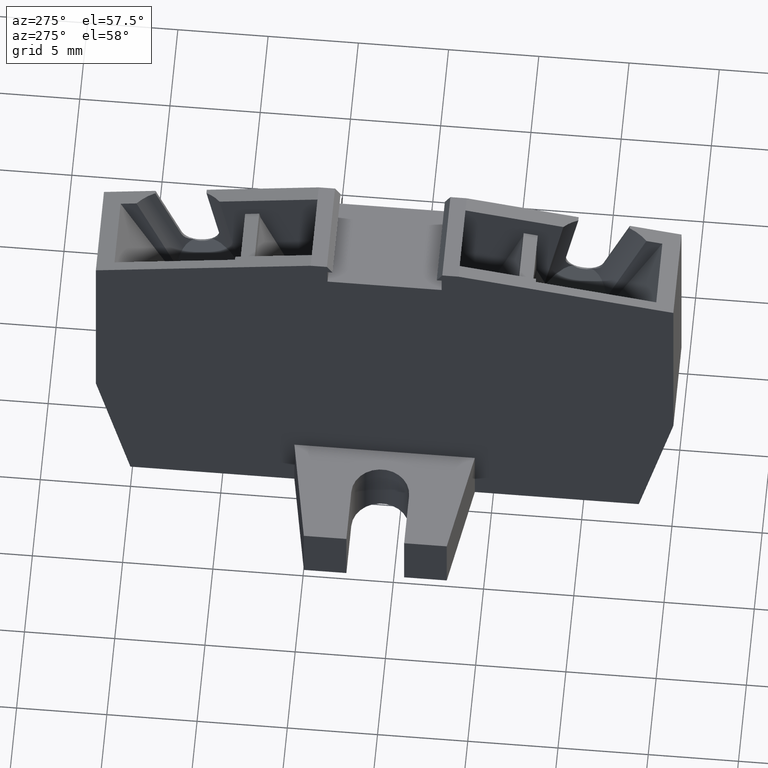
[diagram: clean part render]
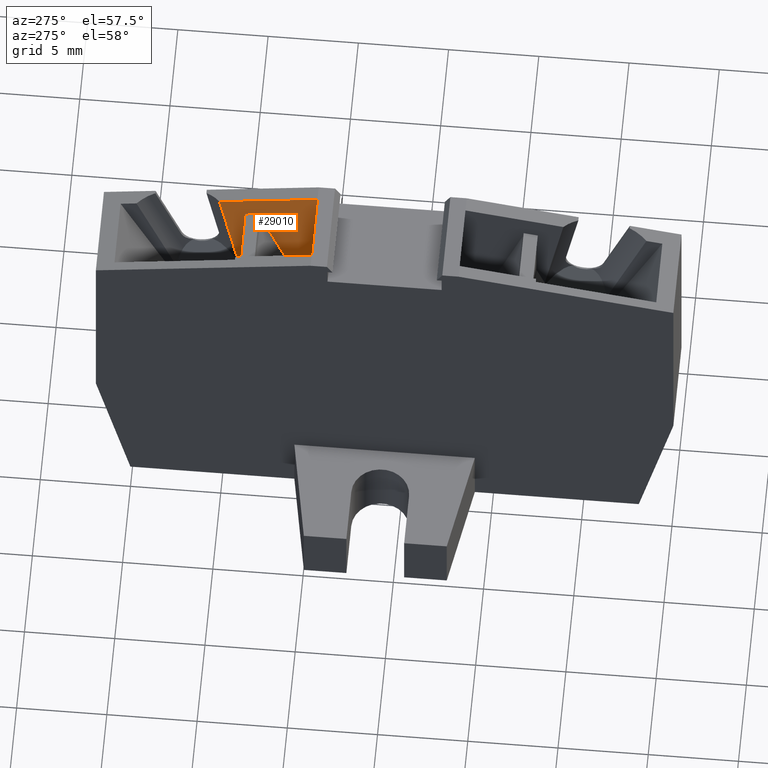
[diagram: same view with one face highlighted and labeled with its STEP entity id]
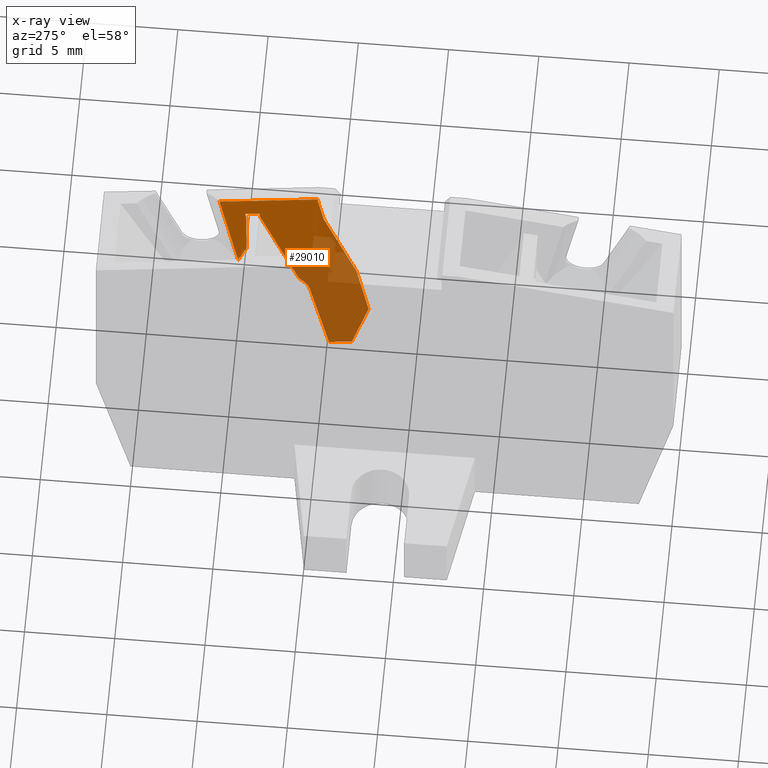
[diagram: x-ray of the same camera — body ghosted, the highlighted face saturated]
A machine part, auxiliary view. The second image highlights one B-rep face of the part: STEP entity #29010.
The next image is the same camera in x-ray: the body ghosted, the highlighted face saturated — about 53% of this face is hidden behind the body in this view.
In plain terms, the highlighted planar face has unit normal (1, 0, -0).
Its self-contained STEP definition (entity closure, byte-faithful):
#9140=CARTESIAN_POINT('',(-8.01189244908538,106.727795344085,
55.8499999999999));
#9150=VERTEX_POINT('',#9140);
#27470=CARTESIAN_POINT('',(1.75839833015842,112.276796883914,55.85));
#27480=VERTEX_POINT('',#27470);
#27510=CARTESIAN_POINT('',(18.7160460130879,120.184277862758,
55.8500000000001));
#27520=DIRECTION('',(-0.906307787036653,-0.422618261740694,
-7.27087389478272E-15));
#27530=VECTOR('',#27520,1.);
#27540=LINE('',#27510,#27530);
#27550=CARTESIAN_POINT('',(-1.77620203928452,110.628585663125,55.85));
#27560=VERTEX_POINT('',#27550);
#27570=EDGE_CURVE('',#27480,#27560,#27540,.T.);
#27760=CARTESIAN_POINT('',(-6.19463392360039,102.830671859828,55.85));
#27770=DIRECTION('',(8.93071795990504E-15,-1.83248232067042E-15,-1.));
#27780=DIRECTION('',(0.906307787036652,0.422618261740696,
7.31953873785773E-15));
#27790=AXIS2_PLACEMENT_3D('',#27760,#27770,#27780);
#27800=PLANE('',#27790);
#27810=CARTESIAN_POINT('',(-5.68278183840537,101.733001520849,55.85));
#27820=DIRECTION('',(0.906307787036652,0.422618261740696,
7.32767172685757E-15));
#27830=VECTOR('',#27820,1.);
#27840=LINE('',#27810,#27830);
#27850=CARTESIAN_POINT('',(-5.68278183840371,101.73300152085,55.85));
#27860=VERTEX_POINT('',#27850);
#27870=CARTESIAN_POINT('',(-0.287279018036958,104.248965805588,55.85));
#27880=VERTEX_POINT('',#27870);
#27890=EDGE_CURVE('',#27860,#27880,#27840,.T.);
#27900=ORIENTED_EDGE('',*,*,#27890,.T.);
#27910=CARTESIAN_POINT('',(6.44969629117224,75.7148182090424,
55.8500000000001));
#27920=DIRECTION('',(-0.422618261740707,0.906307787036646,
-5.42047023404749E-15));
#27930=VECTOR('',#27920,1.);
#27940=LINE('',#27910,#27930);
#27950=EDGE_CURVE('',#27860,#9150,#27940,.T.);
#27960=ORIENTED_EDGE('',*,*,#27950,.F.);
#27970=CARTESIAN_POINT('',(1.20790384613802,111.027056963177,55.85));
#27980=DIRECTION('',(0.906307787036652,0.422618261740696,
7.2904964813985E-15));
#27990=VECTOR('',#27980,1.);
#28000=LINE('',#27970,#27990);
#28010=CARTESIAN_POINT('',(-6.19927687501219,107.573031867567,
55.8499999999999));
#28020=VERTEX_POINT('',#28010);
#28030=EDGE_CURVE('',#9150,#28020,#28000,.T.);
#28040=ORIENTED_EDGE('',*,*,#28030,.F.);
#28050=CARTESIAN_POINT('',(17.6758199169611,124.066454504862,
55.8500000000001));
#28060=DIRECTION('',(-0.822764161310261,-0.56838291218458,
-6.28766225299997E-15));
#28070=VECTOR('',#28060,1.);
#28080=LINE('',#28050,#28070);
#28090=EDGE_CURVE('',#27560,#28020,#28080,.T.);
#28100=ORIENTED_EDGE('',*,*,#28090,.T.);
#28110=ORIENTED_EDGE('',*,*,#27570,.T.);
#28120=CARTESIAN_POINT('',(0.486366166483478,112.276796883914,55.85));
#28130=DIRECTION('',(1.,-3.94129173741929E-15,8.89181918956587E-15));
#28140=VECTOR('',#28130,1.);
#28150=LINE('',#28120,#28140);
#28160=CARTESIAN_POINT('',(5.33755169623177,112.276796883914,55.85));
#28170=VERTEX_POINT('',#28160);
#28180=EDGE_CURVE('',#27480,#28170,#28150,.T.);
#28190=ORIENTED_EDGE('',*,*,#28180,.F.);
#28200=CARTESIAN_POINT('',(57.6930819163133,0.,55.8500000000007));
#28210=DIRECTION('',(-0.422618261740694,0.906307787036653,
-5.41233724504764E-15));
#28220=VECTOR('',#28210,1.);
#28230=LINE('',#28200,#28220);
#28240=CARTESIAN_POINT('',(5.87971885492917,111.114115660014,
55.8500000000001));
#28250=VERTEX_POINT('',#28240);
#28260=EDGE_CURVE('',#28250,#28170,#28230,.T.);
#28270=ORIENTED_EDGE('',*,*,#28260,.T.);
#28280=CARTESIAN_POINT('',(0.133111783529785,108.268900140643,55.85));
#28290=DIRECTION('',(-0.896172435574508,-0.443705945099291,
-7.16093850883226E-15));
#28300=VECTOR('',#28290,1.);
#28310=LINE('',#28280,#28300);
#28320=CARTESIAN_POINT('',(0.944297912149203,108.670528324643,55.85));
#28330=VERTEX_POINT('',#28320);
#28340=EDGE_CURVE('',#28250,#28330,#28310,.T.);
#28350=ORIENTED_EDGE('',*,*,#28340,.F.);
#28360=CARTESIAN_POINT('',(1.47674504626835,107.595121401953,55.85));
#28370=DIRECTION('',(-8.8991901808283E-15,1.84718396549852E-15,1.));
#28380=DIRECTION('',(1.,0.,8.8991901808283E-15));
#28390=AXIS2_PLACEMENT_3D('',#28360,#28370,#28380);
#28400=CIRCLE('',#28390,1.2);
#28410=CARTESIAN_POINT('',(0.501680783937643,108.294585256863,55.85));
#28420=VERTEX_POINT('',#28410);
#28430=EDGE_CURVE('',#28330,#28420,#28400,.T.);
#28440=ORIENTED_EDGE('',*,*,#28430,.F.);
#28450=CARTESIAN_POINT('',(-77.1836072488498,0.,55.8499999999995));
#28460=DIRECTION('',(0.582886545758282,0.812553551942257,
3.63598040564739E-15));
#28470=VECTOR('',#28460,1.);
#28480=LINE('',#28450,#28470);
#28490=CARTESIAN_POINT('',(0.181995440978463,107.848938564869,55.85));
#28500=VERTEX_POINT('',#28490);
#28510=EDGE_CURVE('',#28500,#28420,#28480,.T.);
#28520=ORIENTED_EDGE('',*,*,#28510,.T.);
#28530=CARTESIAN_POINT('',(2.22710715010392,109.261745057466,55.85));
#28540=DIRECTION('',(0.822764161310261,0.56838291218458,
6.27788652704149E-15));
#28550=VECTOR('',#28540,1.);
#28560=LINE('',#28530,#28550);
#28570=CARTESIAN_POINT('',(-5.01712736716253,104.257274390058,55.85));
#28580=VERTEX_POINT('',#28570);
#28590=EDGE_CURVE('',#28580,#28500,#28560,.T.);
#28600=ORIENTED_EDGE('',*,*,#28590,.T.);
#28610=CARTESIAN_POINT('',(2.96694492446825,107.980308442908,55.85));
#28620=DIRECTION('',(0.906307787036652,0.422618261740696,
7.2904964813985E-15));
#28630=VECTOR('',#28620,1.);
#28640=LINE('',#28610,#28630);
#28650=CARTESIAN_POINT('',(-5.35254430504548,104.100866903248,55.85));
#28660=VERTEX_POINT('',#28650);
#28670=EDGE_CURVE('',#28660,#28580,#28640,.T.);
#28680=ORIENTED_EDGE('',*,*,#28670,.T.);
#28690=CARTESIAN_POINT('',(-5.35254430504548,104.100866903248,55.85));
#28700=DIRECTION('',(0.422618261740707,-0.906307787036646,
-4.21043963486243E-15));
#28710=VECTOR('',#28700,1.);
#28720=LINE('',#28690,#28710);
#28730=CARTESIAN_POINT('',(-5.01643380045225,103.380075600092,55.85));
#28740=VERTEX_POINT('',#28730);
#28750=EDGE_CURVE('',#28660,#28740,#28720,.T.);
#28760=ORIENTED_EDGE('',*,*,#28750,.F.);
#28770=CARTESIAN_POINT('',(30.7687890493702,120.066999063746,
55.8500000000001));
#28780=DIRECTION('',(-0.906307787036652,-0.422618261740696,
-3.33734311230176E-15));
#28790=VECTOR('',#28780,1.);
#28800=LINE('',#28770,#28790);
#28810=CARTESIAN_POINT('',(-4.64715590385742,103.55227271126,55.85));
#28820=VERTEX_POINT('',#28810);
#28830=EDGE_CURVE('',#28820,#28740,#28800,.T.);
#28840=ORIENTED_EDGE('',*,*,#28830,.T.);
#28850=CARTESIAN_POINT('',(30.7687890493703,113.041946560662,
55.8500000000001));
#28860=DIRECTION('',(0.96592582628907,0.258819045102516,
3.8996583739959E-15));
#28870=VECTOR('',#28860,1.);
#28880=LINE('',#28850,#28870);
#28890=CARTESIAN_POINT('',(-1.61390303522581,104.365030367853,55.85));
#28900=VERTEX_POINT('',#28890);
#28910=EDGE_CURVE('',#28820,#28900,#28880,.T.);
#28920=ORIENTED_EDGE('',*,*,#28910,.F.);
#28930=CARTESIAN_POINT('',(30.7687890493704,101.531911916021,
55.8500000000003));
#28940=DIRECTION('',(-0.996194698091802,0.0871557427470196,
-9.05280784569822E-15));
#28950=VECTOR('',#28940,1.);
#28960=LINE('',#28930,#28950);
#28970=EDGE_CURVE('',#27880,#28900,#28960,.T.);
#28980=ORIENTED_EDGE('',*,*,#28970,.T.);
#28990=EDGE_LOOP('',(#28980,#28920,#28840,#28760,#28680,#28600,#28520,
#28440,#28350,#28270,#28190,#28110,#28100,#28040,#27960,#27900));
#29000=FACE_OUTER_BOUND('',#28990,.T.);
#29010=ADVANCED_FACE('',(#29000),#27800,.F.);